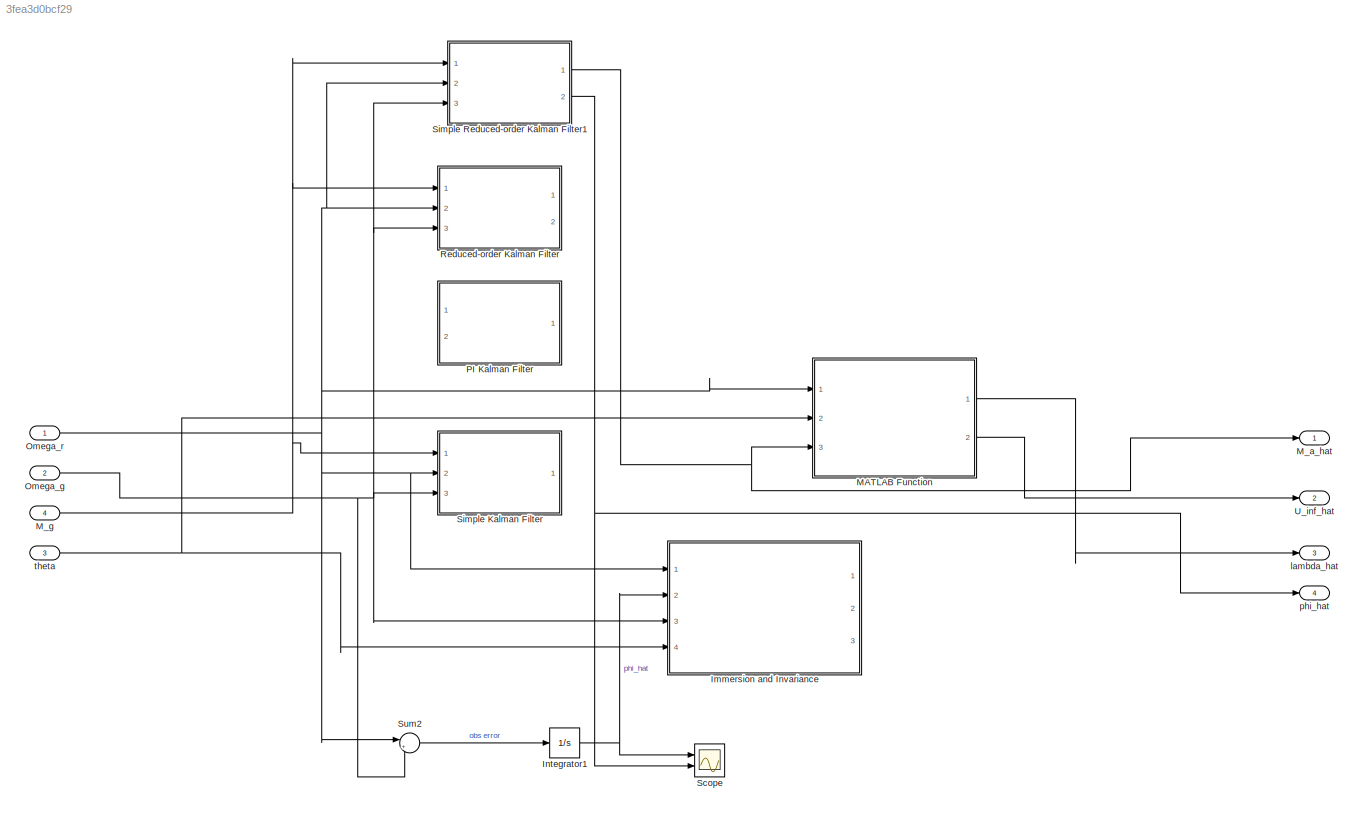
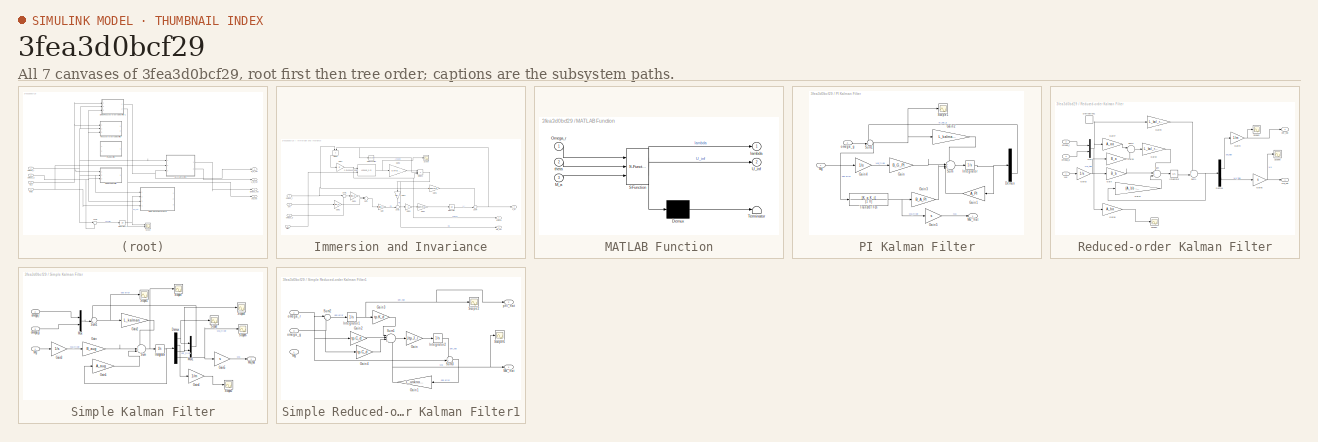
[diagram: thumbnail index - all 7 canvases of the model, root first then tree order]
MODEL slx_3fea3d0bcf29
KIND model
CONFIG AbsTol = auto
CONFIG EnableMultiTasking = off
CONFIG FixedStep = DT
CONFIG MaxStep = auto
CONFIG MinStep = auto
CONFIG RelTol = 1e-3
CONFIG SampleTimeConstraint = Unconstrained
CONFIG Solver = FixedStepAuto
CONFIG SolverName = FixedStepAuto
CONFIG StartTime = 0.0
CONFIG StopTime = 10.0
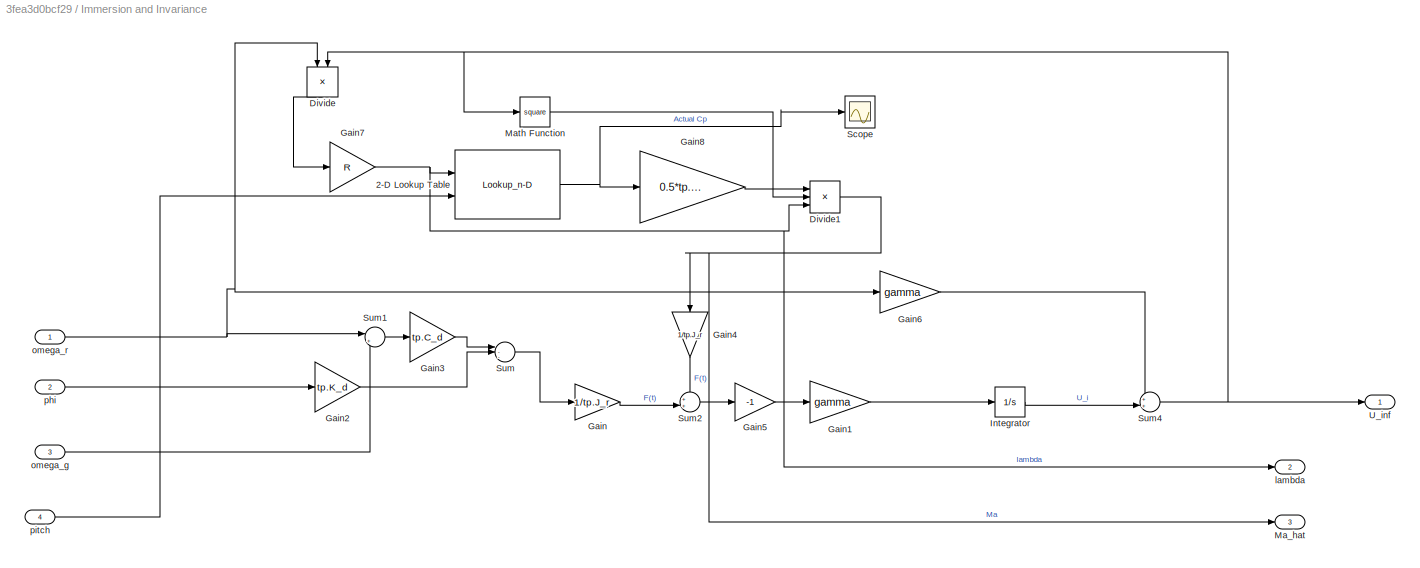
BLOCK [SubSystem] Immersion and Invariance
  Ports = [4, 3]
  RequestExecContextInheritance = off
  TreatAsAtomicUnit = on
BLOCK [Lookup_n-D] Immersion and Invariance/2-D Lookup Table
  BreakpointsForDimension1 = tp.lambda_bp
  BreakpointsForDimension2 = tp.theta_bp
  ExtrapMethod = Cubic spline
  InternalRulePriority = Speed
  InterpMethod = Cubic spline
  Ports = [2, 1]
  RndMeth = Simplest
  Table = tp.C_p
BLOCK [Product] Immersion and Invariance/Divide
  Inputs = */
  NameLocation = left
  Ports = [2, 1]
BLOCK [Product] Immersion and Invariance/Divide1
  Inputs = **/
  Ports = [3, 1]
BLOCK [Gain] Immersion and Invariance/Gain
  Gain = 1/tp.J_r
BLOCK [Gain] Immersion and Invariance/Gain1
  Gain = gamma
BLOCK [Gain] Immersion and Invariance/Gain2
  Gain = tp.K_d
BLOCK [Gain] Immersion and Invariance/Gain3
  Gain = tp.C_d
BLOCK [Gain] Immersion and Invariance/Gain4
  Gain = 1/tp.J_r
  NameLocation = left
BLOCK [Gain] Immersion and Invariance/Gain5
  Gain = -1
BLOCK [Gain] Immersion and Invariance/Gain6
  Gain = gamma
BLOCK [Gain] Immersion and Invariance/Gain7
  Gain = R
BLOCK [Gain] Immersion and Invariance/Gain8
  Gain = 0.5*tp.rho*pi*tp.R^3
BLOCK [Integrator] Immersion and Invariance/Integrator
  InitialCondition = ini_wind_speed
  Ports = [1, 1]
BLOCK [Outport] Immersion and Invariance/Ma_hat
  Port = 3
BLOCK [Math] Immersion and Invariance/Math Function
  Operator = square
  Ports = [1, 1]
BLOCK [Scope] Immersion and Invariance/Scope
  Floating = off
  NumInputPorts = 1
  Ports = [1]
  ScopeSpecificationString = Simulink.scopes.TimeScopeBlockCfg('CurrentConfiguration', extmgr.ConfigurationSet(extmgr.Configuration('Core','General UI',true),extmgr.Configuration('Core','Source UI',true),extmgr.Configuration('Sources','WiredSimulink',true,'DataLoggingVariableName','ScopeData1'),extmgr.Configuration('Visuals','Time Domain',true),extmgr.Configuration('Tools','Plot Navigation',true),extmgr.Configuration('Tools',...<+40ch>
BLOCK [Sum] Immersion and Invariance/Sum
  Inputs = |--+
  Ports = [3, 1]
BLOCK [Sum] Immersion and Invariance/Sum1
  Inputs = |+-
  Ports = [2, 1]
BLOCK [Sum] Immersion and Invariance/Sum2
  Inputs = ++|
  Ports = [2, 1]
BLOCK [Sum] Immersion and Invariance/Sum4
  Inputs = ++|
  Ports = [2, 1]
BLOCK [Outport] Immersion and Invariance/U_inf
BLOCK [Outport] Immersion and Invariance/lambda
  Port = 2
BLOCK [Inport] Immersion and Invariance/omega_g
  Port = 3
BLOCK [Inport] Immersion and Invariance/omega_r
BLOCK [Inport] Immersion and Invariance/phi
  Port = 2
BLOCK [Inport] Immersion and Invariance/pitch
  Port = 4
BLOCK [Integrator] Integrator1
  Ports = [1, 1]
BLOCK [SubSystem] MATLAB Function
  ErrorFcn = Stateflow.Translate.translate
  PermitHierarchicalResolution = ExplicitOnly
  Ports = [3, 2]
  RequestExecContextInheritance = off
  SFBlockType = MATLAB Function
  TreatAsAtomicUnit = on
BLOCK [Demux] MATLAB Function/ Demux 
  Outputs = 1
  Ports = [1, 1]
BLOCK [S-Function] MATLAB Function/ SFunction 
  EnableBusSupport = on
  FunctionName = sf_sfun
  Parameters = tp
  PortCounts = [3 3]
  Ports = [3, 3]
  SFcnIsStateOwnerBlock = off
  SFunctionDeploymentMode = off
  Tag = Stateflow S-Function 3
BLOCK [Terminator] MATLAB Function/ Terminator 
BLOCK [Inport] MATLAB Function/M_a
  Port = 3
BLOCK [Inport] MATLAB Function/Omega_r
BLOCK [Outport] MATLAB Function/U_inf
  Port = 2
BLOCK [Outport] MATLAB Function/lambda
BLOCK [Inport] MATLAB Function/theta
  Port = 2
BLOCK [Outport] M_a_hat
BLOCK [Inport] M_g
  Port = 4
BLOCK [Inport] Omega_g
  Port = 2
BLOCK [Inport] Omega_r
BLOCK [SubSystem] PI Kalman Filter
  Ports = [2, 1]
  RequestExecContextInheritance = off
  TreatAsAtomicUnit = on
BLOCK [Demux] PI Kalman Filter/Demux
  Outputs = 3
  Ports = [1, 3]
BLOCK [Gain] PI Kalman Filter/Gain
  Gain = B_G_PI
  Multiplication = Matrix(K*u) (u vector)
BLOCK [Gain] PI Kalman Filter/Gain1
  Gain = A_PI
  Multiplication = Matrix(K*u) (u vector)
  NameLocation = top
BLOCK [Gain] PI Kalman Filter/Gain2
  Gain = L_kalman_PI
  Multiplication = Matrix(K*u) (u vector)
BLOCK [Gain] PI Kalman Filter/Gain3
  Gain = B_A_PI
  Multiplication = Matrix(K*u) (u vector)
BLOCK [Gain] PI Kalman Filter/Gain4
  Gain = 1/s
BLOCK [Gain] PI Kalman Filter/Gain5
  Gain = s
BLOCK [Integrator] PI Kalman Filter/Integrator
  InitialCondition = [Omega_r_0; phi_0; Omega_g_0]
  Ports = [1, 1]
BLOCK [Outport] PI Kalman Filter/Ma_hat
BLOCK [Inport] PI Kalman Filter/Mg
BLOCK [Scope] PI Kalman Filter/Scope1
  Floating = off
  NumInputPorts = 1
  Ports = [1]
  ScopeSpecificationString = Simulink.scopes.TimeScopeBlockCfg('CurrentConfiguration', extmgr.ConfigurationSet(extmgr.Configuration('Core','General UI',true),extmgr.Configuration('Core','Source UI',true),extmgr.Configuration('Sources','WiredSimulink',true,'DataLoggingVariableName','ScopeData3'),extmgr.Configuration('Visuals','Time Domain',true,'SerializedDisplays',{struct('MinYLimReal','-0.0608','MaxYLimReal','0.07174','YLabe...<+1450ch>
BLOCK [Sum] PI Kalman Filter/Sum
  Inputs = ++++|
  Ports = [4, 1]
BLOCK [Sum] PI Kalman Filter/Sum1
  Inputs = -+|
  Ports = [2, 1]
BLOCK [TransferFcn] PI Kalman Filter/Transfer Fcn
  Denominator = [1 0]
  Numerator = [K_p K_i]
BLOCK [Inport] PI Kalman Filter/omega_g
  Port = 2
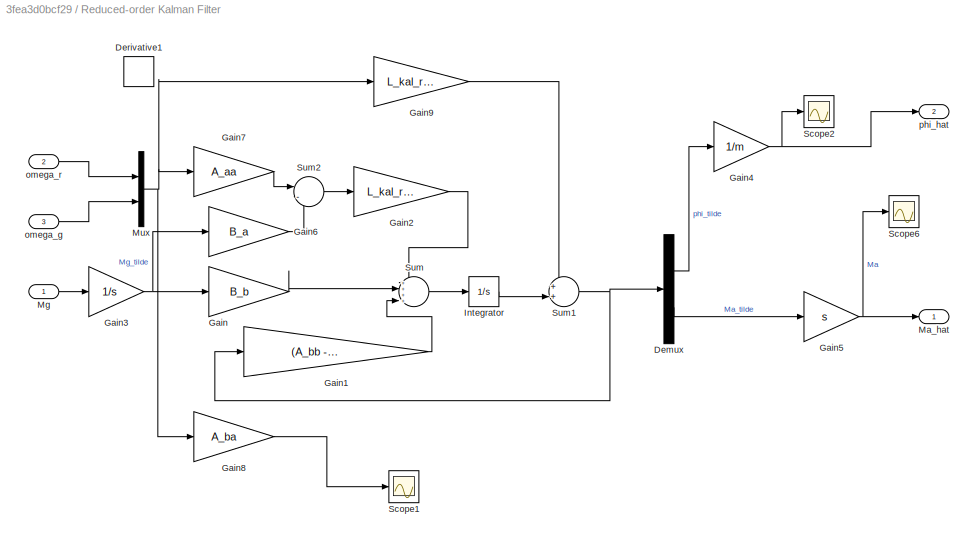
BLOCK [SubSystem] Reduced-order Kalman Filter
  Ports = [3, 2]
  RequestExecContextInheritance = off
  TreatAsAtomicUnit = on
BLOCK [Demux] Reduced-order Kalman Filter/Demux
  Outputs = 2
  Ports = [1, 2]
BLOCK [Derivative] Reduced-order Kalman Filter/Derivative1
BLOCK [Gain] Reduced-order Kalman Filter/Gain
  Gain = B_b
  Multiplication = Matrix(K*u) (u vector)
BLOCK [Gain] Reduced-order Kalman Filter/Gain1
  Gain = (A_bb - L_kal_red*A_ab)
  Multiplication = Matrix(K*u) (u vector)
BLOCK [Gain] Reduced-order Kalman Filter/Gain2
  Gain = L_kal_red
  Multiplication = Matrix(K*u) (u vector)
BLOCK [Gain] Reduced-order Kalman Filter/Gain3
  Gain = 1/s
BLOCK [Gain] Reduced-order Kalman Filter/Gain4
  Gain = 1/m
BLOCK [Gain] Reduced-order Kalman Filter/Gain5
  Gain = s
BLOCK [Gain] Reduced-order Kalman Filter/Gain6
  Gain = B_a
  Multiplication = Matrix(K*u) (u vector)
BLOCK [Gain] Reduced-order Kalman Filter/Gain7
  Gain = A_aa
  Multiplication = Matrix(K*u) (u vector)
BLOCK [Gain] Reduced-order Kalman Filter/Gain8
  Gain = A_ba
  Multiplication = Matrix(K*u) (u vector)
BLOCK [Gain] Reduced-order Kalman Filter/Gain9
  Gain = L_kal_red
  Multiplication = Matrix(K*u) (u vector)
BLOCK [Integrator] Reduced-order Kalman Filter/Integrator
  InitialCondition = [phi_0; ini_torque]
  Ports = [1, 1]
BLOCK [Outport] Reduced-order Kalman Filter/Ma_hat
BLOCK [Inport] Reduced-order Kalman Filter/Mg
BLOCK [Mux] Reduced-order Kalman Filter/Mux
  DisplayOption = bar
  Inputs = 2
  Ports = [2, 1]
BLOCK [Scope] Reduced-order Kalman Filter/Scope1
  Floating = off
  NumInputPorts = 1
  Ports = [1]
  ScopeSpecificationString = Simulink.scopes.TimeScopeBlockCfg('CurrentConfiguration', extmgr.ConfigurationSet(extmgr.Configuration('Core','General UI',true),extmgr.Configuration('Core','Source UI',true),extmgr.Configuration('Sources','WiredSimulink',true,'DataLoggingVariableName','ScopeData2'),extmgr.Configuration('Visuals','Time Domain',true,'SerializedDisplays',{struct('MinYLimReal','-14.04665','MaxYLimReal','11.18482','YL...<+1443ch>
BLOCK [Scope] Reduced-order Kalman Filter/Scope2
  Floating = off
  NumInputPorts = 1
  Ports = [1]
  ScopeSpecificationString = Simulink.scopes.TimeScopeBlockCfg('CurrentConfiguration', extmgr.ConfigurationSet(extmgr.Configuration('Core','General UI',true),extmgr.Configuration('Core','Source UI',true),extmgr.Configuration('Sources','WiredSimulink',true,'DataLoggingVariableName','ScopeData3'),extmgr.Configuration('Visuals','Time Domain',true,'SerializedDisplays',{struct('MinYLimReal','0.00486','MaxYLimReal','0.00598','YLabe...<+1436ch>
BLOCK [Scope] Reduced-order Kalman Filter/Scope6
  Floating = off
  NumInputPorts = 1
  Ports = [1]
  ScopeSpecificationString = Simulink.scopes.TimeScopeBlockCfg('CurrentConfiguration', extmgr.ConfigurationSet(extmgr.Configuration('Core','General UI',true),extmgr.Configuration('Core','Source UI',true),extmgr.Configuration('Sources','WiredSimulink',true,'DataLoggingVariableName','ScopeData7'),extmgr.Configuration('Visuals','Time Domain',true,'SerializedDisplays',{struct('MinYLimReal','-575633.40507','MaxYLimReal','287880.72...<+1498ch>
BLOCK [Sum] Reduced-order Kalman Filter/Sum
  Inputs = ++++|
  Ports = [4, 1]
BLOCK [Sum] Reduced-order Kalman Filter/Sum1
  Inputs = ++|
  Ports = [2, 1]
BLOCK [Sum] Reduced-order Kalman Filter/Sum2
  Inputs = |--
  Ports = [2, 1]
BLOCK [Inport] Reduced-order Kalman Filter/omega_g
  Port = 3
BLOCK [Inport] Reduced-order Kalman Filter/omega_r
  Port = 2
BLOCK [Outport] Reduced-order Kalman Filter/phi_hat
  Port = 2
BLOCK [Scope] Scope
  Floating = off
  NumInputPorts = 2
  Ports = [2]
  ScopeSpecificationString = Simulink.scopes.TimeScopeBlockCfg('CurrentConfiguration', extmgr.ConfigurationSet(extmgr.Configuration('Core','General UI',true),extmgr.Configuration('Core','Source UI',true),extmgr.Configuration('Sources','WiredSimulink',true,'DataLoggingVariableName','ScopeData1','DataLoggingSaveFormat','Array','DataLoggingLimitDataPoints',true,'DataLoggingDecimation','1'),extmgr.Configuration('Visuals','Time Do...<+1739ch>
BLOCK [SubSystem] Simple Kalman Filter
  Ports = [3, 1]
  RequestExecContextInheritance = off
  TreatAsAtomicUnit = on
BLOCK [Demux] Simple Kalman Filter/Demux
  Ports = [1, 4]
BLOCK [Gain] Simple Kalman Filter/Gain
  Gain = B_aug
  Multiplication = Matrix(K*u) (u vector)
BLOCK [Gain] Simple Kalman Filter/Gain1
  Gain = A_aug
  Multiplication = Matrix(K*u) (u vector)
BLOCK [Gain] Simple Kalman Filter/Gain2
  Gain = L_kalman
  Multiplication = Matrix(K*u) (u vector)
BLOCK [Gain] Simple Kalman Filter/Gain3
  Gain = 1/s
BLOCK [Gain] Simple Kalman Filter/Gain4
  Gain = 1/m
BLOCK [Gain] Simple Kalman Filter/Gain5
  Gain = s
BLOCK [Integrator] Simple Kalman Filter/Integrator
  InitialCondition = [Omega_r_0; Omega_g_0; phi_0; ini_torque]
  Ports = [1, 1]
BLOCK [Outport] Simple Kalman Filter/Ma_hat
BLOCK [Inport] Simple Kalman Filter/Mg
BLOCK [Mux] Simple Kalman Filter/Mux
  DisplayOption = bar
  Inputs = 2
  Ports = [2, 1]
BLOCK [Mux] Simple Kalman Filter/Mux1
  DisplayOption = bar
  Inputs = 2
  Ports = [2, 1]
BLOCK [Scope] Simple Kalman Filter/Scope
  Floating = off
  NumInputPorts = 1
  Ports = [1]
  ScopeSpecificationString = Simulink.scopes.TimeScopeBlockCfg('CurrentConfiguration', extmgr.ConfigurationSet(extmgr.Configuration('Core','General UI',true),extmgr.Configuration('Core','Source UI',true),extmgr.Configuration('Sources','WiredSimulink',true,'DataLoggingVariableName','ScopeData1'),extmgr.Configuration('Visuals','Time Domain',true,'SerializedDisplays',{struct('MinYLimReal','174650662932937009187995337907103858968...<+3766ch>
BLOCK [Scope] Simple Kalman Filter/Scope1
  Floating = off
  NumInputPorts = 1
  Ports = [1]
  ScopeSpecificationString = Simulink.scopes.TimeScopeBlockCfg('CurrentConfiguration', extmgr.ConfigurationSet(extmgr.Configuration('Core','General UI',true),extmgr.Configuration('Core','Source UI',true),extmgr.Configuration('Sources','WiredSimulink',true,'DataLoggingVariableName','ScopeData3'),extmgr.Configuration('Visuals','Time Domain',true,'SerializedDisplays',{struct('MinYLimReal','-34188775865095840942592204182474947627...<+3850ch>
BLOCK [Scope] Simple Kalman Filter/Scope2
  Floating = off
  NumInputPorts = 1
  Ports = [1]
  ScopeSpecificationString = Simulink.scopes.TimeScopeBlockCfg('CurrentConfiguration', extmgr.ConfigurationSet(extmgr.Configuration('Core','General UI',true),extmgr.Configuration('Core','Source UI',true),extmgr.Configuration('Sources','WiredSimulink',true,'DataLoggingVariableName','ScopeData3'),extmgr.Configuration('Visuals','Time Domain',true,'SerializedDisplays',{struct('MinYLimReal','186420814673027117024912891249444004512...<+3760ch>
BLOCK [Scope] Simple Kalman Filter/Scope4
  Floating = off
  NumInputPorts = 1
  Ports = [1]
  ScopeSpecificationString = Simulink.scopes.TimeScopeBlockCfg('CurrentConfiguration', extmgr.ConfigurationSet(extmgr.Configuration('Core','General UI',true),extmgr.Configuration('Core','Source UI',true),extmgr.Configuration('Sources','WiredSimulink',true,'DataLoggingVariableName','ScopeData5'),extmgr.Configuration('Visuals','Time Domain',true,'SerializedDisplays',{struct('MinYLimReal','-13940184808726983282396653676879941005...<+3815ch>
BLOCK [Scope] Simple Kalman Filter/Scope6
  Floating = off
  NumInputPorts = 1
  Ports = [1]
  ScopeSpecificationString = Simulink.scopes.TimeScopeBlockCfg('CurrentConfiguration', extmgr.ConfigurationSet(extmgr.Configuration('Core','General UI',true),extmgr.Configuration('Core','Source UI',true),extmgr.Configuration('Sources','WiredSimulink',true,'DataLoggingVariableName','ScopeData7'),extmgr.Configuration('Visuals','Time Domain',true,'SerializedDisplays',{struct('MinYLimReal','-50080287574025261477966326789360032476...<+3779ch>
BLOCK [Scope] Simple Kalman Filter/Scope7
  Floating = off
  NumInputPorts = 1
  Ports = [1]
  ScopeSpecificationString = Simulink.scopes.TimeScopeBlockCfg('CurrentConfiguration', extmgr.ConfigurationSet(extmgr.Configuration('Core','General UI',true),extmgr.Configuration('Core','Source UI',true),extmgr.Configuration('Sources','WiredSimulink',true,'DataLoggingVariableName','ScopeData8'),extmgr.Configuration('Visuals','Time Domain',true,'SerializedDisplays',{struct('MinYLimReal','-11346560433171544575240289755481146955...<+3907ch>
BLOCK [Sum] Simple Kalman Filter/Sum
  Inputs = +++|
  Ports = [3, 1]
BLOCK [Sum] Simple Kalman Filter/Sum1
  Inputs = -+|
  Ports = [2, 1]
BLOCK [Inport] Simple Kalman Filter/omega_g
  Port = 3
BLOCK [Inport] Simple Kalman Filter/omega_r
  Port = 2
BLOCK [SubSystem] Simple Reduced-order Kalman Filter1
  Ports = [3, 2]
  RequestExecContextInheritance = off
  TreatAsAtomicUnit = on
BLOCK [Gain] Simple Reduced-order Kalman Filter1/Gain
  Gain = 1/tp.J_r
BLOCK [Gain] Simple Reduced-order Kalman Filter1/Gain1
  Gain = L_unknown*tp.J_r
  NameLocation = top
BLOCK [Gain] Simple Reduced-order Kalman Filter1/Gain2
  Gain = tp.C_d
BLOCK [Gain] Simple Reduced-order Kalman Filter1/Gain3
  Gain = tp.K_d
BLOCK [Gain] Simple Reduced-order Kalman Filter1/Gain4
  Gain = tp.C_d
BLOCK [Integrator] Simple Reduced-order Kalman Filter1/Integrator1
  Ports = [1, 1]
BLOCK [Integrator] Simple Reduced-order Kalman Filter1/Integrator2
  Ports = [1, 1]
BLOCK [Outport] Simple Reduced-order Kalman Filter1/Ma_hat
BLOCK [Inport] Simple Reduced-order Kalman Filter1/Mg
BLOCK [Scope] Simple Reduced-order Kalman Filter1/Scope2
  Floating = off
  NumInputPorts = 1
  Ports = [1]
  ScopeSpecificationString = Simulink.scopes.TimeScopeBlockCfg('CurrentConfiguration', extmgr.ConfigurationSet(extmgr.Configuration('Core','General UI',true),extmgr.Configuration('Core','Source UI',true),extmgr.Configuration('Sources','WiredSimulink',true,'DataLoggingVariableName','ScopeData3'),extmgr.Configuration('Visuals','Time Domain',true,'SerializedDisplays',{struct('MinYLimReal','0.00486','MaxYLimReal','0.00598','YLabe...<+1436ch>
BLOCK [Scope] Simple Reduced-order Kalman Filter1/Scope6
  Floating = off
  NumInputPorts = 1
  Ports = [1]
  ScopeSpecificationString = Simulink.scopes.TimeScopeBlockCfg('CurrentConfiguration', extmgr.ConfigurationSet(extmgr.Configuration('Core','General UI',true),extmgr.Configuration('Core','Source UI',true),extmgr.Configuration('Sources','WiredSimulink',true,'DataLoggingVariableName','ScopeData7'),extmgr.Configuration('Visuals','Time Domain',true,'SerializedDisplays',{struct('MinYLimReal','-575633.40507','MaxYLimReal','287880.72...<+1498ch>
BLOCK [Sum] Simple Reduced-order Kalman Filter1/Sum1
  Inputs = |--++
  Ports = [4, 1]
BLOCK [Sum] Simple Reduced-order Kalman Filter1/Sum2
  Inputs = |+-
  Ports = [2, 1]
BLOCK [Sum] Simple Reduced-order Kalman Filter1/Sum3
  Inputs = -+|
  Ports = [2, 1]
BLOCK [Inport] Simple Reduced-order Kalman Filter1/omega_g
  Port = 3
BLOCK [Inport] Simple Reduced-order Kalman Filter1/omega_r
  Port = 2
BLOCK [Outport] Simple Reduced-order Kalman Filter1/phi_hat
  Port = 2
BLOCK [Sum] Sum2
  Inputs = |+-
  Ports = [2, 1]
BLOCK [Outport] U_inf_hat
  Port = 2
BLOCK [Outport] lambda_hat
  Port = 3
BLOCK [Outport] phi_hat
  Port = 4
BLOCK [Inport] theta
  Port = 3
NET Immersion and Invariance/2-D Lookup Table:1 -> Immersion and Invariance/Gain8:1, Immersion and Invariance/Scope:1
NET Immersion and Invariance/Divide1:1 -> Immersion and Invariance/Gain4:1, Immersion and Invariance/Ma_hat:1
LINE Immersion and Invariance/Divide:1 -> Immersion and Invariance/Gain7:1
LINE Immersion and Invariance/Gain1:1 -> Immersion and Invariance/Integrator:1
LINE Immersion and Invariance/Gain2:1 -> Immersion and Invariance/Sum:2
LINE Immersion and Invariance/Gain3:1 -> Immersion and Invariance/Sum:1
LINE Immersion and Invariance/Gain4:1 -> Immersion and Invariance/Sum2:1
LINE Immersion and Invariance/Gain5:1 -> Immersion and Invariance/Gain1:1
LINE Immersion and Invariance/Gain6:1 -> Immersion and Invariance/Sum4:1
NET Immersion and Invariance/Gain7:1 -> Immersion and Invariance/2-D Lookup Table:1, Immersion and Invariance/Divide1:3, Immersion and Invariance/lambda:1
LINE Immersion and Invariance/Gain8:1 -> Immersion and Invariance/Divide1:1
LINE Immersion and Invariance/Gain:1 -> Immersion and Invariance/Sum2:2
LINE Immersion and Invariance/Integrator:1 -> Immersion and Invariance/Sum4:2
LINE Immersion and Invariance/Math Function:1 -> Immersion and Invariance/Divide1:2
LINE Immersion and Invariance/Sum1:1 -> Immersion and Invariance/Gain3:1
LINE Immersion and Invariance/Sum2:1 -> Immersion and Invariance/Gain5:1
NET Immersion and Invariance/Sum4:1 -> Immersion and Invariance/Divide:2, Immersion and Invariance/Math Function:1, Immersion and Invariance/U_inf:1
LINE Immersion and Invariance/Sum:1 -> Immersion and Invariance/Gain:1
LINE Immersion and Invariance/omega_g:1 -> Immersion and Invariance/Sum1:2
NET Immersion and Invariance/omega_r:1 -> Immersion and Invariance/Divide:1, Immersion and Invariance/Gain6:1, Immersion and Invariance/Sum1:1
LINE Immersion and Invariance/phi:1 -> Immersion and Invariance/Gain2:1
LINE Immersion and Invariance/pitch:1 -> Immersion and Invariance/2-D Lookup Table:2
NET Integrator1:1 -> Immersion and Invariance:2, Scope:1
LINE MATLAB Function:1 -> lambda_hat:1
LINE MATLAB Function:2 -> U_inf_hat:1
NET M_g:1 -> Reduced-order Kalman Filter:1, Simple Kalman Filter:1, Simple Reduced-order Kalman Filter1:1
NET Omega_g:1 -> Immersion and Invariance:3, Reduced-order Kalman Filter:3, Simple Kalman Filter:3, Simple Reduced-order Kalman Filter1:3, Sum2:2
NET Omega_r:1 -> Immersion and Invariance:1, MATLAB Function:1, Reduced-order Kalman Filter:2, Simple Kalman Filter:2, Simple Reduced-order Kalman Filter1:2, Sum2:1
LINE PI Kalman Filter/Demux:3 -> PI Kalman Filter/Sum1:1
LINE PI Kalman Filter/Gain1:1 -> PI Kalman Filter/Sum:4
LINE PI Kalman Filter/Gain2:1 -> PI Kalman Filter/Sum:1
LINE PI Kalman Filter/Gain3:1 -> PI Kalman Filter/Sum:3
LINE PI Kalman Filter/Gain4:1 -> PI Kalman Filter/Gain:1
LINE PI Kalman Filter/Gain5:1 -> PI Kalman Filter/Ma_hat:1
LINE PI Kalman Filter/Gain:1 -> PI Kalman Filter/Sum:2
NET PI Kalman Filter/Integrator:1 -> PI Kalman Filter/Demux:1, PI Kalman Filter/Gain1:1
LINE PI Kalman Filter/Mg:1 -> PI Kalman Filter/Gain4:1
NET PI Kalman Filter/Sum1:1 -> PI Kalman Filter/Gain2:1, PI Kalman Filter/Scope1:1, PI Kalman Filter/Transfer Fcn:1
LINE PI Kalman Filter/Sum:1 -> PI Kalman Filter/Integrator:1
NET PI Kalman Filter/Transfer Fcn:1 -> PI Kalman Filter/Gain3:1, PI Kalman Filter/Gain5:1
LINE PI Kalman Filter/omega_g:1 -> PI Kalman Filter/Sum1:2
LINE Reduced-order Kalman Filter/Demux:1 -> Reduced-order Kalman Filter/Gain4:1
LINE Reduced-order Kalman Filter/Demux:2 -> Reduced-order Kalman Filter/Gain5:1
LINE Reduced-order Kalman Filter/Gain1:1 -> Reduced-order Kalman Filter/Sum:4
LINE Reduced-order Kalman Filter/Gain2:1 -> Reduced-order Kalman Filter/Sum:1
NET Reduced-order Kalman Filter/Gain3:1 -> Reduced-order Kalman Filter/Gain6:1, Reduced-order Kalman Filter/Gain:1
NET Reduced-order Kalman Filter/Gain4:1 -> Reduced-order Kalman Filter/Scope2:1, Reduced-order Kalman Filter/phi_hat:1
NET Reduced-order Kalman Filter/Gain5:1 -> Reduced-order Kalman Filter/Ma_hat:1, Reduced-order Kalman Filter/Scope6:1
LINE Reduced-order Kalman Filter/Gain6:1 -> Reduced-order Kalman Filter/Sum2:2
LINE Reduced-order Kalman Filter/Gain7:1 -> Reduced-order Kalman Filter/Sum2:1
LINE Reduced-order Kalman Filter/Gain8:1 -> Reduced-order Kalman Filter/Scope1:1
LINE Reduced-order Kalman Filter/Gain9:1 -> Reduced-order Kalman Filter/Sum1:1
LINE Reduced-order Kalman Filter/Gain:1 -> Reduced-order Kalman Filter/Sum:2
LINE Reduced-order Kalman Filter/Integrator:1 -> Reduced-order Kalman Filter/Sum1:2
LINE Reduced-order Kalman Filter/Mg:1 -> Reduced-order Kalman Filter/Gain3:1
NET Reduced-order Kalman Filter/Mux:1 -> Reduced-order Kalman Filter/Gain7:1, Reduced-order Kalman Filter/Gain8:1, Reduced-order Kalman Filter/Gain9:1
NET Reduced-order Kalman Filter/Sum1:1 -> Reduced-order Kalman Filter/Demux:1, Reduced-order Kalman Filter/Gain1:1
LINE Reduced-order Kalman Filter/Sum2:1 -> Reduced-order Kalman Filter/Gain2:1
LINE Reduced-order Kalman Filter/Sum:1 -> Reduced-order Kalman Filter/Integrator:1
LINE Reduced-order Kalman Filter/omega_g:1 -> Reduced-order Kalman Filter/Mux:2
LINE Reduced-order Kalman Filter/omega_r:1 -> Reduced-order Kalman Filter/Mux:1
NET Simple Kalman Filter/Demux:1 -> Simple Kalman Filter/Mux1:1, Simple Kalman Filter/Scope:1
LINE Simple Kalman Filter/Demux:2 -> Simple Kalman Filter/Gain4:1
NET Simple Kalman Filter/Demux:3 -> Simple Kalman Filter/Mux1:2, Simple Kalman Filter/Scope4:1
NET Simple Kalman Filter/Demux:4 -> Simple Kalman Filter/Gain5:1, Simple Kalman Filter/Scope6:1
LINE Simple Kalman Filter/Gain1:1 -> Simple Kalman Filter/Sum:3
LINE Simple Kalman Filter/Gain2:1 -> Simple Kalman Filter/Sum:1
LINE Simple Kalman Filter/Gain3:1 -> Simple Kalman Filter/Gain:1
LINE Simple Kalman Filter/Gain4:1 -> Simple Kalman Filter/Scope2:1
LINE Simple Kalman Filter/Gain5:1 -> Simple Kalman Filter/Ma_hat:1
LINE Simple Kalman Filter/Gain:1 -> Simple Kalman Filter/Sum:2
NET Simple Kalman Filter/Integrator:1 -> Simple Kalman Filter/Demux:1, Simple Kalman Filter/Gain1:1
LINE Simple Kalman Filter/Mg:1 -> Simple Kalman Filter/Gain3:1
LINE Simple Kalman Filter/Mux1:1 -> Simple Kalman Filter/Sum1:1
LINE Simple Kalman Filter/Mux:1 -> Simple Kalman Filter/Sum1:2
NET Simple Kalman Filter/Sum1:1 -> Simple Kalman Filter/Gain2:1, Simple Kalman Filter/Scope1:1
NET Simple Kalman Filter/Sum:1 -> Simple Kalman Filter/Integrator:1, Simple Kalman Filter/Scope7:1
LINE Simple Kalman Filter/omega_g:1 -> Simple Kalman Filter/Mux:2
LINE Simple Kalman Filter/omega_r:1 -> Simple Kalman Filter/Mux:1
NET Simple Reduced-order Kalman Filter1/Gain1:1 -> Simple Reduced-order Kalman Filter1/Ma_hat:1, Simple Reduced-order Kalman Filter1/Scope6:1, Simple Reduced-order Kalman Filter1/Sum1:4
LINE Simple Reduced-order Kalman Filter1/Gain2:1 -> Simple Reduced-order Kalman Filter1/Sum1:2
LINE Simple Reduced-order Kalman Filter1/Gain3:1 -> Simple Reduced-order Kalman Filter1/Sum1:1
LINE Simple Reduced-order Kalman Filter1/Gain4:1 -> Simple Reduced-order Kalman Filter1/Sum1:3
LINE Simple Reduced-order Kalman Filter1/Gain:1 -> Simple Reduced-order Kalman Filter1/Integrator2:1
NET Simple Reduced-order Kalman Filter1/Integrator1:1 -> Simple Reduced-order Kalman Filter1/Gain3:1, Simple Reduced-order Kalman Filter1/Scope2:1, Simple Reduced-order Kalman Filter1/phi_hat:1
LINE Simple Reduced-order Kalman Filter1/Integrator2:1 -> Simple Reduced-order Kalman Filter1/Sum3:1
LINE Simple Reduced-order Kalman Filter1/Sum1:1 -> Simple Reduced-order Kalman Filter1/Gain:1
LINE Simple Reduced-order Kalman Filter1/Sum2:1 -> Simple Reduced-order Kalman Filter1/Integrator1:1
LINE Simple Reduced-order Kalman Filter1/Sum3:1 -> Simple Reduced-order Kalman Filter1/Gain1:1
NET Simple Reduced-order Kalman Filter1/omega_g:1 -> Simple Reduced-order Kalman Filter1/Gain4:1, Simple Reduced-order Kalman Filter1/Sum2:2
NET Simple Reduced-order Kalman Filter1/omega_r:1 -> Simple Reduced-order Kalman Filter1/Gain2:1, Simple Reduced-order Kalman Filter1/Sum2:1, Simple Reduced-order Kalman Filter1/Sum3:2
NET Simple Reduced-order Kalman Filter1:1 -> MATLAB Function:3, M_a_hat:1
NET Simple Reduced-order Kalman Filter1:2 -> Scope:2, phi_hat:1
LINE Sum2:1 -> Integrator1:1
NET theta:1 -> Immersion and Invariance:4, MATLAB Function:2
note: NET lines group one-source signal fan-out (src -> all destinations, sorted); 1:1 wires keep LINE
CHART MATLAB Function states=1 transitions=1
  STATE_LABEL 'eML_blk_kernel()'
  STATE_LABEL 'SCRIPT:\n% Computes the windspeed using a secant method with given torque\n% estimation, rotor speed, and blade pitch angle\nfunction [lambda, U_inf] = torque_to_windspeed(Omega_r, theta, M_a, tp)\n\nC = 2*M_a/(tp.rho*pi*tp.R^5*(Omega_r)^2);\n% Root finding using secant method\n\n% initial guesses for lambda, assume we lie close to optimal\nx_n_1 = 0.9*tp.lambda_star; %x[n]\nx_n = 1.1*tp.lambda_star; %x[n-1...<+637ch>'
CHART  states=0 transitions=0
